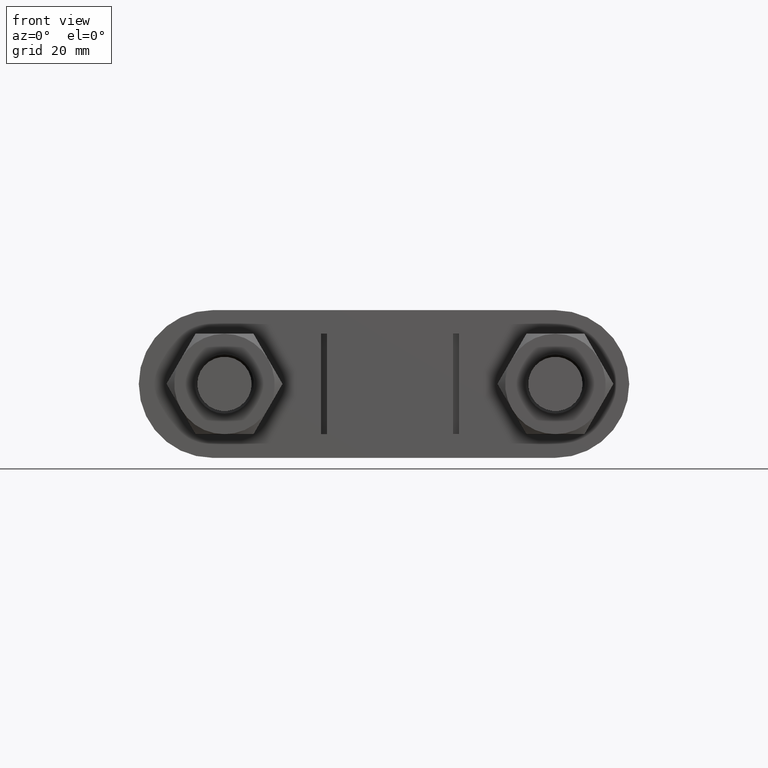
[diagram: clean part render]
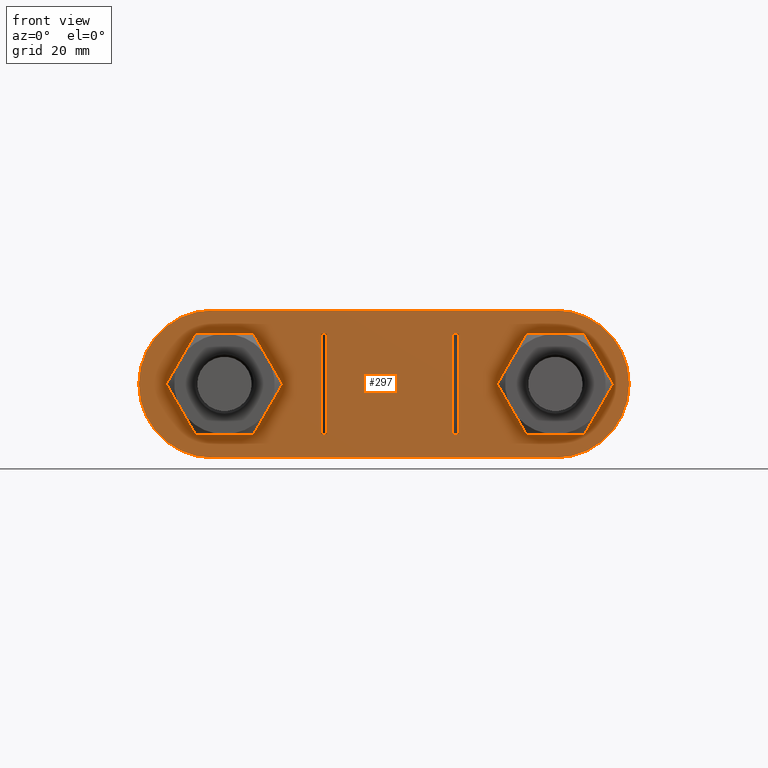
[diagram: same view with one face highlighted and labeled with its STEP entity id]
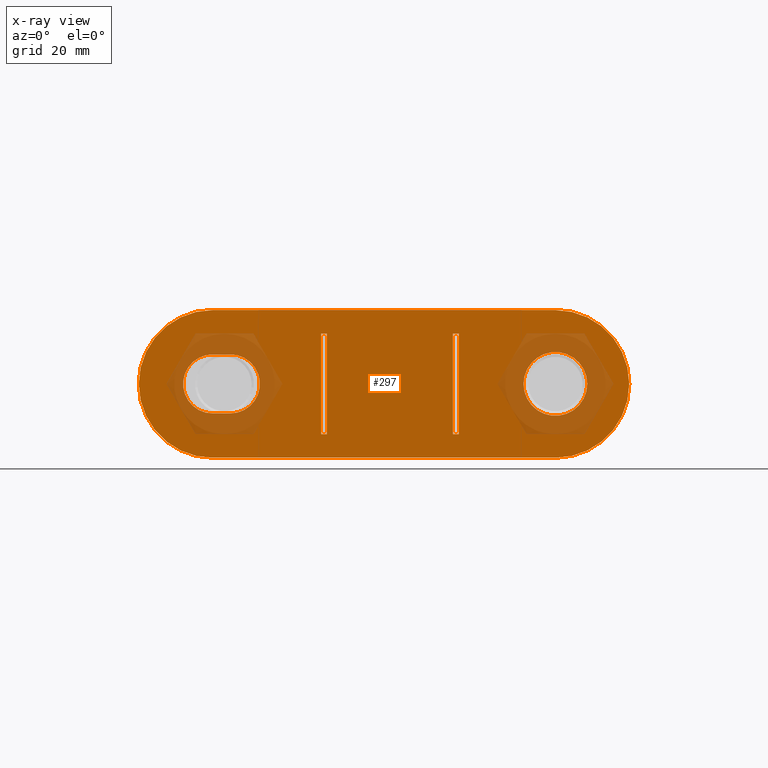
[diagram: x-ray of the same camera — body ghosted, the highlighted face saturated]
A machine part, front view. The second image highlights one B-rep face of the part: STEP entity #297.
The next image is the same camera in x-ray: the body ghosted, the highlighted face saturated — about 18% of this face is hidden behind the body in this view.
In plain terms, the highlighted planar face has unit normal (-0, 1, 0).
Its self-contained STEP definition (entity closure, byte-faithful):
#297 = ADVANCED_FACE( '', ( #451, #452, #453, #454, #455 ), #456, .F. );
#451 = FACE_BOUND( '', #1533, .T. );
#452 = FACE_OUTER_BOUND( '', #1534, .T. );
#453 = FACE_BOUND( '', #1535, .T. );
#454 = FACE_BOUND( '', #1536, .T. );
#455 = FACE_BOUND( '', #1537, .T. );
#456 = PLANE( '', #1538 );
#1533 = EDGE_LOOP( '', ( #1912, #1913, #1914, #1915 ) );
#1534 = EDGE_LOOP( '', ( #1916, #1917, #1918, #1919, #1920, #1921 ) );
#1535 = EDGE_LOOP( '', ( #1922 ) );
#1536 = EDGE_LOOP( '', ( #1923, #1924, #1925, #1926 ) );
#1537 = EDGE_LOOP( '', ( #1927, #1928, #1929, #1930 ) );
#1538 = AXIS2_PLACEMENT_3D( '', #1931, #1932, #1933 );
#1912 = ORIENTED_EDGE( '', *, *, #2593, .F. );
#1913 = ORIENTED_EDGE( '', *, *, #2594, .T. );
#1914 = ORIENTED_EDGE( '', *, *, #2595, .T. );
#1915 = ORIENTED_EDGE( '', *, *, #2596, .F. );
#1916 = ORIENTED_EDGE( '', *, *, #2597, .F. );
#1917 = ORIENTED_EDGE( '', *, *, #2598, .F. );
#1918 = ORIENTED_EDGE( '', *, *, #2599, .F. );
#1919 = ORIENTED_EDGE( '', *, *, #2600, .F. );
#1920 = ORIENTED_EDGE( '', *, *, #2601, .F. );
#1921 = ORIENTED_EDGE( '', *, *, #2602, .F. );
#1922 = ORIENTED_EDGE( '', *, *, #2603, .T. );
#1923 = ORIENTED_EDGE( '', *, *, #2604, .F. );
#1924 = ORIENTED_EDGE( '', *, *, #2605, .F. );
#1925 = ORIENTED_EDGE( '', *, *, #2606, .F. );
#1926 = ORIENTED_EDGE( '', *, *, #2607, .F. );
#1927 = ORIENTED_EDGE( '', *, *, #2608, .T. );
#1928 = ORIENTED_EDGE( '', *, *, #2609, .T. );
#1929 = ORIENTED_EDGE( '', *, *, #2610, .F. );
#1930 = ORIENTED_EDGE( '', *, *, #2611, .F. );
#1931 = CARTESIAN_POINT( '', ( -29.9999999999917, 33.4999999999981, 3.52518497842810E-007 ) );
#1932 = DIRECTION( '', ( -5.80381248534074E-014, 1.00000000000000, 8.48069738959592E-014 ) );
#1933 = DIRECTION( '', ( 1.17504990182499E-008, -8.48069732139823E-014, 1.00000000000000 ) );
#2593 = EDGE_CURVE( '', #2863, #2864, #2865, .T. );
#2594 = EDGE_CURVE( '', #2863, #2866, #2867, .T. );
#2595 = EDGE_CURVE( '', #2866, #2868, #2869, .T. );
#2596 = EDGE_CURVE( '', #2864, #2868, #2870, .T. );
#2597 = EDGE_CURVE( '', #2871, #2872, #2873, .T. );
#2598 = EDGE_CURVE( '', #2874, #2871, #2875, .T. );
#2599 = EDGE_CURVE( '', #2876, #2874, #2877, .T. );
#2600 = EDGE_CURVE( '', #2878, #2876, #2879, .T. );
#2601 = EDGE_CURVE( '', #2880, #2878, #2881, .T. );
#2602 = EDGE_CURVE( '', #2872, #2880, #2882, .T. );
#2603 = EDGE_CURVE( '', #2883, #2883, #2884, .T. );
#2604 = EDGE_CURVE( '', #2885, #2886, #2887, .T. );
#2605 = EDGE_CURVE( '', #2888, #2885, #2889, .T. );
#2606 = EDGE_CURVE( '', #2890, #2888, #2891, .T. );
#2607 = EDGE_CURVE( '', #2886, #2890, #2892, .T. );
#2608 = EDGE_CURVE( '', #2893, #2894, #2895, .T. );
#2609 = EDGE_CURVE( '', #2894, #2896, #2897, .T. );
#2610 = EDGE_CURVE( '', #2898, #2896, #2899, .T. );
#2611 = EDGE_CURVE( '', #2893, #2898, #2900, .T. );
#2863 = VERTEX_POINT( '', #3499 );
#2864 = VERTEX_POINT( '', #3500 );
#2865 = LINE( '', #3501, #3502 );
#2866 = VERTEX_POINT( '', #3503 );
#2867 = LINE( '', #3504, #3505 );
#2868 = VERTEX_POINT( '', #3506 );
#2869 = LINE( '', #3507, #3508 );
#2870 = LINE( '', #3509, #3510 );
#2871 = VERTEX_POINT( '', #3511 );
#2872 = VERTEX_POINT( '', #3512 );
#2873 = CIRCLE( '', #3513, 12.5000000000000 );
#2874 = VERTEX_POINT( '', #3514 );
#2875 = CIRCLE( '', #3515, 12.5000000000000 );
#2876 = VERTEX_POINT( '', #3516 );
#2877 = LINE( '', #3517, #3518 );
#2878 = VERTEX_POINT( '', #3519 );
#2879 = CIRCLE( '', #3520, 12.5000000000000 );
#2880 = VERTEX_POINT( '', #3521 );
#2881 = CIRCLE( '', #3522, 12.5000000000000 );
#2882 = LINE( '', #3523, #3524 );
#2883 = VERTEX_POINT( '', #3525 );
#2884 = CIRCLE( '', #3526, 5.39999999999999 );
#2885 = VERTEX_POINT( '', #3527 );
#2886 = VERTEX_POINT( '', #3528 );
#2887 = CIRCLE( '', #3529, 5.00000000000000 );
#2888 = VERTEX_POINT( '', #3530 );
#2889 = LINE( '', #3531, #3532 );
#2890 = VERTEX_POINT( '', #3533 );
#2891 = CIRCLE( '', #3534, 5.00000000000000 );
#2892 = LINE( '', #3535, #3536 );
#2893 = VERTEX_POINT( '', #3537 );
#2894 = VERTEX_POINT( '', #3538 );
#2895 = LINE( '', #3539, #3540 );
#2896 = VERTEX_POINT( '', #3541 );
#2897 = LINE( '', #3542, #3543 );
#2898 = VERTEX_POINT( '', #3544 );
#2899 = LINE( '', #3545, #3546 );
#2900 = LINE( '', #3547, #3548 );
#3499 = CARTESIAN_POINT( '', ( -11.6500000998709, 33.4999999999999, -8.49999986310316 ) );
#3500 = CARTESIAN_POINT( '', ( -10.6500000998709, 33.4999999999999, -8.49999987485366 ) );
#3501 = CARTESIAN_POINT( '', ( -11.6500000998709, 33.4999999999999, -8.49999986310316 ) );
#3502 = VECTOR( '', #4129, 999.999999999999 );
#3503 = CARTESIAN_POINT( '', ( -11.6499999001124, 33.4999999999984, 8.50000013689684 ) );
#3504 = CARTESIAN_POINT( '', ( -11.6500000998709, 33.4999999999999, -8.49999986310316 ) );
#3505 = VECTOR( '', #4130, 1000.00000000000 );
#3506 = CARTESIAN_POINT( '', ( -10.6499999001124, 33.4999999999985, 8.50000012514634 ) );
#3507 = CARTESIAN_POINT( '', ( -11.6499999001124, 33.4999999999984, 8.50000013689685 ) );
#3508 = VECTOR( '', #4131, 999.999999999999 );
#3509 = CARTESIAN_POINT( '', ( -10.6500000998709, 33.4999999999999, -8.49999987485366 ) );
#3510 = VECTOR( '', #4132, 1000.00000000000 );
#3511 = CARTESIAN_POINT( '', ( -42.4999999999917, 33.4999999999974, 4.99399735570934E-007 ) );
#3512 = CARTESIAN_POINT( '', ( -29.9999998531105, 33.4999999999970, 12.5000003525185 ) );
#3513 = AXIS2_PLACEMENT_3D( '', #4133, #4134, #4135 );
#3514 = CARTESIAN_POINT( '', ( -30.0000001468729, 33.4999999999991, -12.4999996474815 ) );
#3515 = AXIS2_PLACEMENT_3D( '', #4136, #4137, #4138 );
#3516 = CARTESIAN_POINT( '', ( 27.9999998531270, 33.5000000000025, -12.5000003290104 ) );
#3517 = CARTESIAN_POINT( '', ( 27.9999998531270, 33.5000000000025, -12.5000003290104 ) );
#3518 = VECTOR( '', #4139, 999.999999999999 );
#3519 = CARTESIAN_POINT( '', ( 40.5000000000082, 33.5000000000022, -4.75891676004915E-007 ) );
#3520 = AXIS2_PLACEMENT_3D( '', #4140, #4141, #4142 );
#3521 = CARTESIAN_POINT( '', ( 28.0000001468895, 33.5000000000004, 12.4999996709896 ) );
#3522 = AXIS2_PLACEMENT_3D( '', #4143, #4144, #4145 );
#3523 = CARTESIAN_POINT( '', ( -29.9999998531105, 33.4999999999970, 12.5000003525185 ) );
#3524 = VECTOR( '', #4146, 999.999999999999 );
#3525 = CARTESIAN_POINT( '', ( 33.4000000000082, 33.5000000000018, -3.92463146853129E-007 ) );
#3526 = AXIS2_PLACEMENT_3D( '', #4147, #4148, #4149 );
#3527 = CARTESIAN_POINT( '', ( -29.9999999412392, 33.4999984999294, 5.00000035251848 ) );
#3528 = CARTESIAN_POINT( '', ( -30.0000000587442, 33.4999984999303, -4.99999964748151 ) );
#3529 = AXIS2_PLACEMENT_3D( '', #4150, #4151, #4152 );
#3530 = CARTESIAN_POINT( '', ( -26.9999999412392, 33.4999984999296, 5.00000031726699 ) );
#3531 = CARTESIAN_POINT( '', ( -26.9999999412392, 33.4999984999296, 5.00000031726699 ) );
#3532 = VECTOR( '', #4153, 1000.00000000000 );
#3533 = CARTESIAN_POINT( '', ( -27.0000000587442, 33.4999984999305, -4.99999968273301 ) );
#3534 = AXIS2_PLACEMENT_3D( '', #4154, #4155, #4156 );
#3535 = CARTESIAN_POINT( '', ( -30.0000000587442, 33.4999984999303, -4.99999964748151 ) );
#3536 = VECTOR( '', #4157, 1000.00000000000 );
#3537 = CARTESIAN_POINT( '', ( 11.6499999001295, 33.5000000000012, -8.50000013689005 ) );
#3538 = CARTESIAN_POINT( '', ( 10.6499999001294, 33.5000000000011, -8.50000012513954 ) );
#3539 = CARTESIAN_POINT( '', ( 11.6499999001295, 33.5000000000012, -8.50000013689004 ) );
#3540 = VECTOR( '', #4158, 1000.00000000004 );
#3541 = CARTESIAN_POINT( '', ( 10.6500000998879, 33.4999999999997, 8.49999987486097 ) );
#3542 = CARTESIAN_POINT( '', ( 10.6499999001294, 33.5000000000011, -8.50000012513954 ) );
#3543 = VECTOR( '', #4159, 1000.00000000003 );
#3544 = CARTESIAN_POINT( '', ( 11.6500000998879, 33.4999999999998, 8.49999986311046 ) );
#3545 = CARTESIAN_POINT( '', ( 11.6500000998880, 33.4999999999998, 8.49999986311047 ) );
#3546 = VECTOR( '', #4160, 1000.00000000004 );
#3547 = CARTESIAN_POINT( '', ( 11.6499999001295, 33.5000000000012, -8.50000013689005 ) );
#3548 = VECTOR( '', #4161, 1000.00000000003 );
#4129 = DIRECTION( '', ( 1.00000000000000, 5.80381258499317E-014, -1.17504990182499E-008 ) );
#4130 = DIRECTION( '', ( 1.17504988578824E-008, -8.45292085548755E-014, 1.00000000000000 ) );
#4131 = DIRECTION( '', ( 1.00000000000000, 5.80381258499317E-014, -1.17504990182499E-008 ) );
#4132 = DIRECTION( '', ( 1.17504988578824E-008, -8.45292085548755E-014, 1.00000000000000 ) );
#4133 = CARTESIAN_POINT( '', ( -29.9999999999917, 33.4999999999981, 3.52518497842810E-007 ) );
#4134 = DIRECTION( '', ( -5.80381248534074E-014, 1.00000000000000, 8.48069738959592E-014 ) );
#4135 = DIRECTION( '', ( -1.00000000000000, -5.80381258499317E-014, 1.17504988794721E-008 ) );
#4136 = CARTESIAN_POINT( '', ( -29.9999999999917, 33.4999999999981, 3.52518501312257E-007 ) );
#4137 = DIRECTION( '', ( -5.80381248534074E-014, 1.00000000000000, 8.48069738959592E-014 ) );
#4138 = DIRECTION( '', ( -1.17504987406942E-008, 8.48069732139823E-014, -1.00000000000000 ) );
#4139 = DIRECTION( '', ( -1.00000000000000, -5.80381258499317E-014, 1.17504990182499E-008 ) );
#4140 = CARTESIAN_POINT( '', ( 28.0000000000083, 33.5000000000014, -3.29010441746238E-007 ) );
#4141 = DIRECTION( '', ( -5.80381248534074E-014, 1.00000000000000, 8.48069738959592E-014 ) );
#4142 = DIRECTION( '', ( 1.00000000000000, 5.80381258499317E-014, -1.17504988794721E-008 ) );
#4143 = CARTESIAN_POINT( '', ( 28.0000000000083, 33.5000000000014, -3.29010445215685E-007 ) );
#4144 = DIRECTION( '', ( -5.80381248534074E-014, 1.00000000000000, 8.48069738959592E-014 ) );
#4145 = DIRECTION( '', ( 1.17504984631384E-008, -8.48069732139823E-014, 1.00000000000000 ) );
#4146 = DIRECTION( '', ( 1.00000000000000, 5.80381258499317E-014, -1.17504990182499E-008 ) );
#4147 = CARTESIAN_POINT( '', ( 28.0000000000082, 33.5000000000014, -3.29010452154579E-007 ) );
#4148 = DIRECTION( '', ( -5.80381248534075E-014, 1.00000000000000, 8.48069738959592E-014 ) );
#4149 = DIRECTION( '', ( 1.00000000000000, 5.80381258499317E-014, -1.17504990182499E-008 ) );
#4150 = CARTESIAN_POINT( '', ( -29.9999999999917, 33.4999984999299, 3.52518485699619E-007 ) );
#4151 = DIRECTION( '', ( 5.80381248534074E-014, -1.00000000000000, -8.48069738959592E-014 ) );
#4152 = DIRECTION( '', ( 1.17504990182499E-008, -8.48069732139823E-014, 1.00000000000000 ) );
#4153 = DIRECTION( '', ( -1.00000000000000, -5.80381258499317E-014, 1.17504990182499E-008 ) );
#4154 = CARTESIAN_POINT( '', ( -26.9999999999917, 33.4999984999300, 3.17266988644869E-007 ) );
#4155 = DIRECTION( '', ( 5.80381248534074E-014, -1.00000000000000, -8.48069738959592E-014 ) );
#4156 = DIRECTION( '', ( -1.17504990182499E-008, 8.48069732139823E-014, -1.00000000000000 ) );
#4157 = DIRECTION( '', ( 1.00000000000000, 5.80381258499317E-014, -1.17504990182499E-008 ) );
#4158 = DIRECTION( '', ( -1.00000000000000, -5.79156652145495E-014, 1.17504990182499E-008 ) );
#4159 = DIRECTION( '', ( 1.17504991786174E-008, -8.45292085548755E-014, 1.00000000000000 ) );
#4160 = DIRECTION( '', ( -1.00000000000000, -5.79156652145495E-014, 1.17504990182499E-008 ) );
#4161 = DIRECTION( '', ( 1.17504991786174E-008, -8.45292085548755E-014, 1.00000000000000 ) );